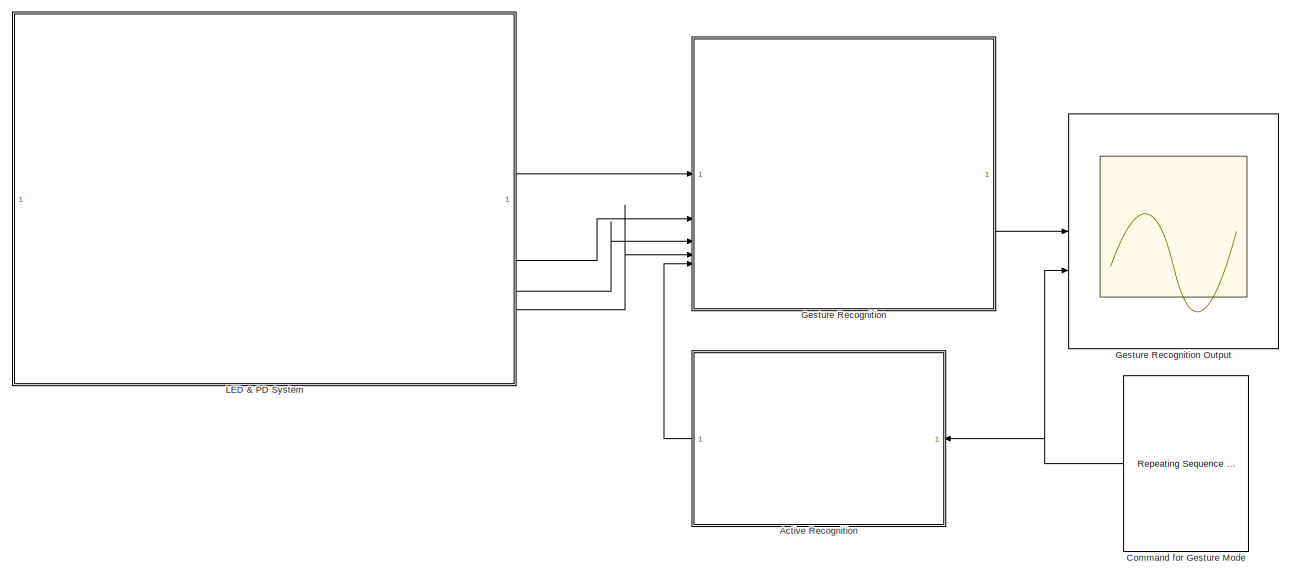
[diagram: root canvas - part 1/2, most of the canvas]
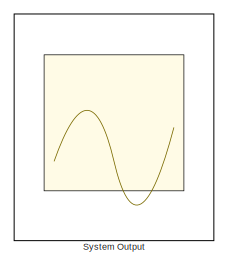
[diagram: root canvas - part 2/2, top left region]
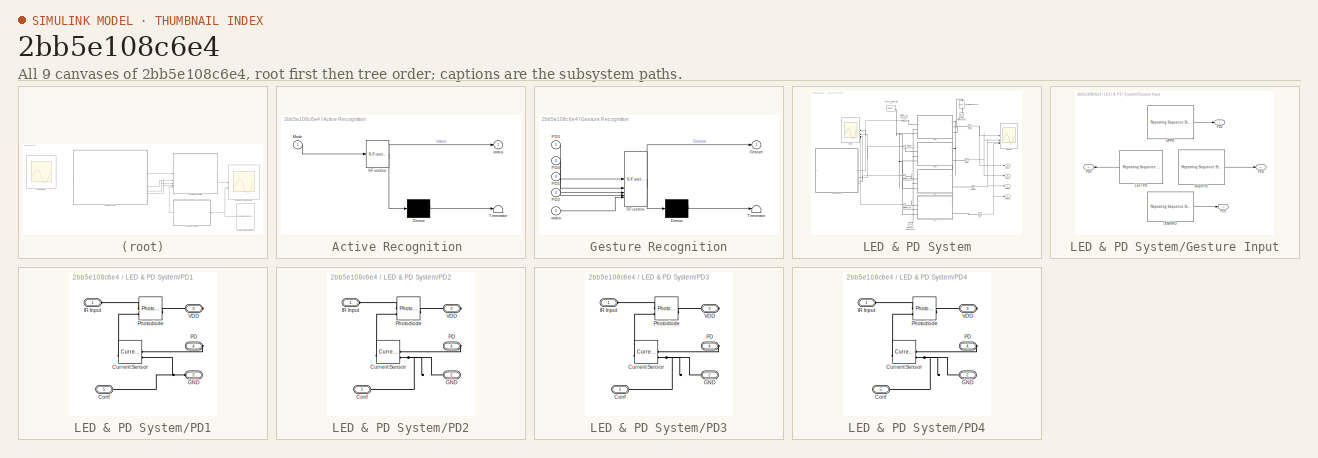
[diagram: thumbnail index - all 9 canvases of the model, root first then tree order]
MODEL slx_2bb5e108c6e4
KIND model
CONFIG AbsTol = auto
CONFIG EnableMultiTasking = off
CONFIG FixedStep = auto
CONFIG MaxStep = auto
CONFIG MinStep = auto
CONFIG RelTol = 1e-3
CONFIG SampleTimeConstraint = Unconstrained
CONFIG SolverName = VariableStepAuto
CONFIG StartTime = 0.0
CONFIG StopTime = 20
BLOCK [SubSystem] Active Recognition 
  ErrorFcn = Stateflow.Translate.translate
  PermitHierarchicalResolution = ExplicitOnly
  SFBlockType = Chart
  TreatAsAtomicUnit = on
BLOCK [Demux] Active Recognition / Demux 
  Outputs = 1
BLOCK [S-Function] Active Recognition / SFunction 
  EnableBusSupport = on
  FunctionName = sf_sfun
  PortCounts = [1 2]
  SFcnIsStateOwnerBlock = off
  SFunctionDeploymentMode = off
  Tag = Stateflow S-Function 1
BLOCK [Terminator] Active Recognition / Terminator 
BLOCK [Inport] Active Recognition /Mode
BLOCK [Outport] Active Recognition /status
BLOCK [Reference] Command for Gesture Mode  REF=simulink/Sources/Repeating
Sequence
Stair
  SourceBlock = simulink/Sources/Repeating\nSequence\nStair
  SourceType = Repeating Sequence Stair
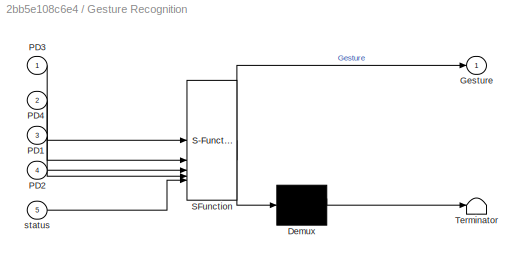
BLOCK [SubSystem] Gesture Recognition
  ErrorFcn = Stateflow.Translate.translate
  PermitHierarchicalResolution = ExplicitOnly
  SFBlockType = Chart
  TreatAsAtomicUnit = on
BLOCK [Scope] Gesture Recognition Output
  Floating = off
  NumInputPorts = 2
  ScopeSpecificationString = Simulink.scopes.TimeScopeBlockCfg('CurrentConfiguration', extmgr.ConfigurationSet(extmgr.Configuration('Core','General UI',true),extmgr.Configuration('Core','Source UI',true),extmgr.Configuration('Sources','WiredSimulink',true,'DataLoggingVariableName','ScopeData1'),extmgr.Configuration('Visuals','Time Domain',true,'SerializedDisplays',{struct('MinYLimReal','-0.125','MaxYLimReal','1.125','YLabelRe...<+1420ch>
BLOCK [Demux] Gesture Recognition/ Demux 
  Outputs = 1
BLOCK [S-Function] Gesture Recognition/ SFunction 
  EnableBusSupport = on
  FunctionName = sf_sfun
  PortCounts = [5 2]
  SFcnIsStateOwnerBlock = off
  SFunctionDeploymentMode = off
  Tag = Stateflow S-Function 3
BLOCK [Terminator] Gesture Recognition/ Terminator 
BLOCK [Outport] Gesture Recognition/Gesture
BLOCK [Inport] Gesture Recognition/PD1
  Port = 3
BLOCK [Inport] Gesture Recognition/PD2
  Port = 4
BLOCK [Inport] Gesture Recognition/PD3
BLOCK [Inport] Gesture Recognition/PD4
  Port = 2
BLOCK [Inport] Gesture Recognition/status
  Port = 5
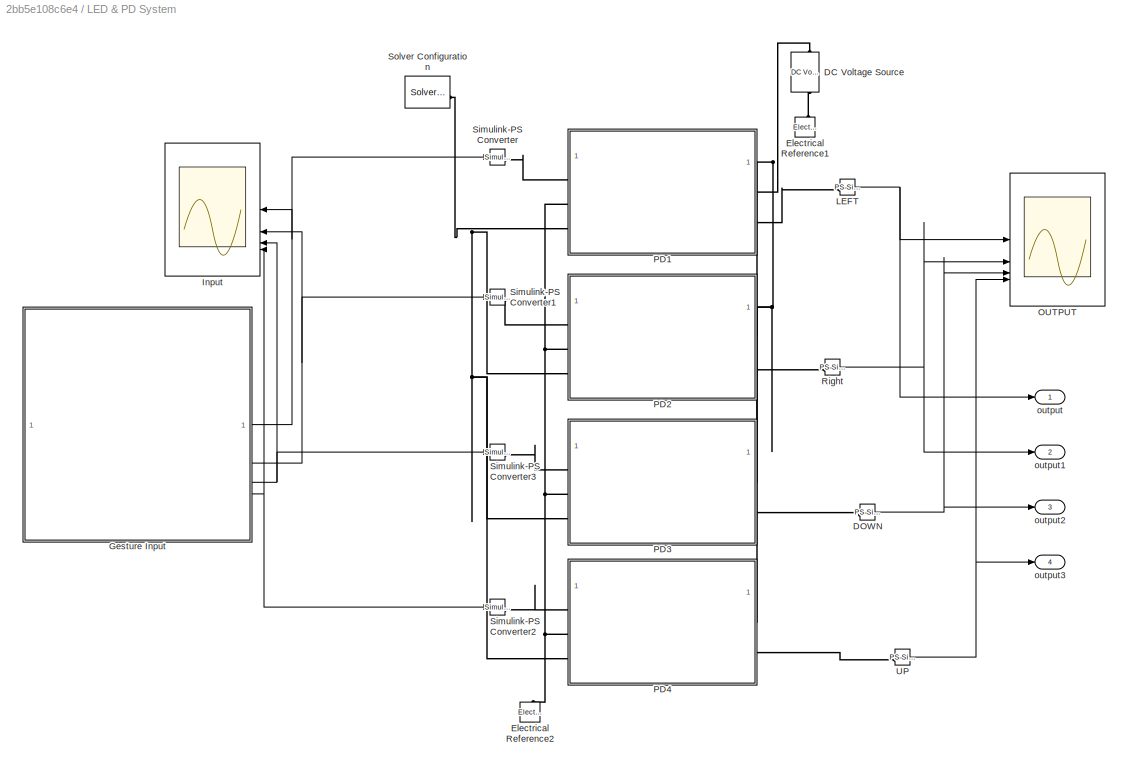
BLOCK [SubSystem] LED & PD System
BLOCK [Reference] LED & PD System/DC Voltage Source  REF=fl_lib/Electrical/Electrical Sources/DC Voltage Source
  NameLocation = right
  SourceBlock = fl_lib/Electrical/Electrical Sources/DC Voltage Source
  SourceType = DC Voltage Source
BLOCK [Reference] LED & PD System/DOWN  REF=nesl_utility/PS-Simulink
Converter
  SourceBlock = nesl_utility/PS-Simulink\nConverter
  SourceType = PS-Simulink\nConverter
BLOCK [Reference] LED & PD System/Electrical Reference1  REF=fl_lib/Electrical/Electrical Elements/Electrical Reference
  NameLocation = right
  SourceBlock = fl_lib/Electrical/Electrical Elements/Electrical Reference
  SourceType = Electrical Reference
BLOCK [Reference] LED & PD System/Electrical Reference2  REF=fl_lib/Electrical/Electrical Elements/Electrical Reference
  NameLocation = right
  SourceBlock = fl_lib/Electrical/Electrical Elements/Electrical Reference
  SourceType = Electrical Reference
BLOCK [SubSystem] LED & PD System/Gesture Input
BLOCK [Reference] LED & PD System/Gesture Input/DOWNPD  REF=simulink/Sources/Repeating
Sequence
Stair
  SourceBlock = simulink/Sources/Repeating\nSequence\nStair
  SourceType = Repeating Sequence Stair
BLOCK [Reference] LED & PD System/Gesture Input/LEFTPD  REF=simulink/Sources/Repeating
Sequence
Stair
  SourceBlock = simulink/Sources/Repeating\nSequence\nStair
  SourceType = Repeating Sequence Stair
BLOCK [Outport] LED & PD System/Gesture Input/PD1
  Port = 3
BLOCK [Outport] LED & PD System/Gesture Input/PD2
  Port = 4
BLOCK [Outport] LED & PD System/Gesture Input/PD3
BLOCK [Outport] LED & PD System/Gesture Input/PD4
  Port = 2
BLOCK [Reference] LED & PD System/Gesture Input/RIGHTPD  REF=simulink/Sources/Repeating
Sequence
Stair
  SourceBlock = simulink/Sources/Repeating\nSequence\nStair
  SourceType = Repeating Sequence Stair
BLOCK [Reference] LED & PD System/Gesture Input/UPPD  REF=simulink/Sources/Repeating
Sequence
Stair
  SourceBlock = simulink/Sources/Repeating\nSequence\nStair
  SourceType = Repeating Sequence Stair
BLOCK [Scope] LED & PD System/Input
  Floating = off
  NumInputPorts = 4
  ScopeSpecificationString = Simulink.scopes.TimeScopeBlockCfg('CurrentConfiguration', extmgr.ConfigurationSet(extmgr.Configuration('Core','General UI',true),extmgr.Configuration('Core','Source UI',true),extmgr.Configuration('Sources','WiredSimulink',true,'DataLoggingVariableName','ScopeData1'),extmgr.Configuration('Visuals','Time Domain',true,'SerializedDisplays',{struct('MinYLimReal','50000.00000','MaxYLimReal','550000.0000...<+1489ch>
BLOCK [Reference] LED & PD System/LEFT  REF=nesl_utility/PS-Simulink
Converter
  SourceBlock = nesl_utility/PS-Simulink\nConverter
  SourceType = PS-Simulink\nConverter
BLOCK [Scope] LED & PD System/OUTPUT
  Floating = off
  NumInputPorts = 4
  ScopeSpecificationString = Simulink.scopes.TimeScopeBlockCfg('CurrentConfiguration', extmgr.ConfigurationSet(extmgr.Configuration('Core','General UI',true),extmgr.Configuration('Core','Source UI',true),extmgr.Configuration('Sources','WiredSimulink',true),extmgr.Configuration('Visuals','Time Domain',true,'SerializedDisplays',{struct('MinYLimReal','-0.75002','MaxYLimReal','3','YLabelReal','','MinYLimMag','0.00000','MaxYLimMag...<+1404ch>
BLOCK [SubSystem] LED & PD System/PD1
BLOCK [PMIOPort] LED & PD System/PD1/Conf
  Port = 5
  Side = Left
BLOCK [Reference] LED & PD System/PD1/Current Sensor  REF=fl_lib/Electrical/Electrical Sensors/Current Sensor
  LibrarySourceBlock = ee_lib/Sensors &\nTransducers/Current Sensor
  SourceBlock = fl_lib/Electrical/Electrical Sensors/Current Sensor
  SourceType = Current Sensor
BLOCK [PMIOPort] LED & PD System/PD1/GND
  Port = 2
  Side = Left
BLOCK [PMIOPort] LED & PD System/PD1/IR Input
  Side = Left
BLOCK [PMIOPort] LED & PD System/PD1/PD
  Port = 4
  Side = Right
BLOCK [Reference] LED & PD System/PD1/Photodiode  REF=ee_lib/Sensors &
Transducers/Photodiode
  SourceBlock = ee_lib/Sensors &\nTransducers/Photodiode
  SourceType = Photodiode
BLOCK [PMIOPort] LED & PD System/PD1/VDD
  Port = 3
  Side = Right
BLOCK [SubSystem] LED & PD System/PD2
BLOCK [PMIOPort] LED & PD System/PD2/Conf
  Port = 5
  Side = Left
BLOCK [Reference] LED & PD System/PD2/Current Sensor  REF=fl_lib/Electrical/Electrical Sensors/Current Sensor
  LibrarySourceBlock = ee_lib/Sensors &\nTransducers/Current Sensor
  SourceBlock = fl_lib/Electrical/Electrical Sensors/Current Sensor
  SourceType = Current Sensor
BLOCK [PMIOPort] LED & PD System/PD2/GND
  Port = 2
  Side = Left
BLOCK [PMIOPort] LED & PD System/PD2/IR Input
  Side = Left
BLOCK [PMIOPort] LED & PD System/PD2/PD
  Port = 4
  Side = Right
BLOCK [Reference] LED & PD System/PD2/Photodiode  REF=ee_lib/Sensors &
Transducers/Photodiode
  SourceBlock = ee_lib/Sensors &\nTransducers/Photodiode
  SourceType = Photodiode
BLOCK [PMIOPort] LED & PD System/PD2/VDD
  Port = 3
  Side = Right
BLOCK [SubSystem] LED & PD System/PD3
BLOCK [PMIOPort] LED & PD System/PD3/Conf
  Port = 5
  Side = Left
BLOCK [Reference] LED & PD System/PD3/Current Sensor  REF=fl_lib/Electrical/Electrical Sensors/Current Sensor
  LibrarySourceBlock = ee_lib/Sensors &\nTransducers/Current Sensor
  SourceBlock = fl_lib/Electrical/Electrical Sensors/Current Sensor
  SourceType = Current Sensor
BLOCK [PMIOPort] LED & PD System/PD3/GND
  Port = 2
  Side = Left
BLOCK [PMIOPort] LED & PD System/PD3/IR Input
  Side = Left
BLOCK [PMIOPort] LED & PD System/PD3/PD
  Port = 4
  Side = Right
BLOCK [Reference] LED & PD System/PD3/Photodiode  REF=ee_lib/Sensors &
Transducers/Photodiode
  SourceBlock = ee_lib/Sensors &\nTransducers/Photodiode
  SourceType = Photodiode
BLOCK [PMIOPort] LED & PD System/PD3/VDD
  Port = 3
  Side = Right
BLOCK [SubSystem] LED & PD System/PD4
BLOCK [PMIOPort] LED & PD System/PD4/Conf
  Port = 5
  Side = Left
BLOCK [Reference] LED & PD System/PD4/Current Sensor  REF=fl_lib/Electrical/Electrical Sensors/Current Sensor
  LibrarySourceBlock = ee_lib/Sensors &\nTransducers/Current Sensor
  SourceBlock = fl_lib/Electrical/Electrical Sensors/Current Sensor
  SourceType = Current Sensor
BLOCK [PMIOPort] LED & PD System/PD4/GND
  Port = 2
  Side = Left
BLOCK [PMIOPort] LED & PD System/PD4/IR Input
  Side = Left
BLOCK [PMIOPort] LED & PD System/PD4/PD
  Port = 4
  Side = Right
BLOCK [Reference] LED & PD System/PD4/Photodiode  REF=ee_lib/Sensors &
Transducers/Photodiode
  SourceBlock = ee_lib/Sensors &\nTransducers/Photodiode
  SourceType = Photodiode
BLOCK [PMIOPort] LED & PD System/PD4/VDD
  Port = 3
  Side = Right
BLOCK [Reference] LED & PD System/Right  REF=nesl_utility/PS-Simulink
Converter
  SourceBlock = nesl_utility/PS-Simulink\nConverter
  SourceType = PS-Simulink\nConverter
BLOCK [Reference] LED & PD System/Simulink-PS Converter  REF=nesl_utility/Simulink-PS
Converter
  SourceBlock = nesl_utility/Simulink-PS\nConverter
  SourceType = Simulink-PS\nConverter
BLOCK [Reference] LED & PD System/Simulink-PS Converter1  REF=nesl_utility/Simulink-PS
Converter
  SourceBlock = nesl_utility/Simulink-PS\nConverter
  SourceType = Simulink-PS\nConverter
BLOCK [Reference] LED & PD System/Simulink-PS Converter2  REF=nesl_utility/Simulink-PS
Converter
  SourceBlock = nesl_utility/Simulink-PS\nConverter
  SourceType = Simulink-PS\nConverter
BLOCK [Reference] LED & PD System/Simulink-PS Converter3  REF=nesl_utility/Simulink-PS
Converter
  SourceBlock = nesl_utility/Simulink-PS\nConverter
  SourceType = Simulink-PS\nConverter
BLOCK [Reference] LED & PD System/Solver Configuration  REF=nesl_utility/Solver
Configuration
  SourceBlock = nesl_utility/Solver\nConfiguration
  SourceType = Solver\nConfiguration
BLOCK [Reference] LED & PD System/UP  REF=nesl_utility/PS-Simulink
Converter
  SourceBlock = nesl_utility/PS-Simulink\nConverter
  SourceType = PS-Simulink\nConverter
BLOCK [Outport] LED & PD System/output
BLOCK [Outport] LED & PD System/output1
  Port = 2
BLOCK [Outport] LED & PD System/output2
  Port = 3
BLOCK [Outport] LED & PD System/output3
  Port = 4
BLOCK [Scope] System Output
  Floating = on
  NumInputPorts = 1
  ScopeSpecificationString = Simulink.scopes.TimeScopeBlockCfg('CurrentConfiguration', extmgr.ConfigurationSet(extmgr.Configuration('Core','General UI',true),extmgr.Configuration('Core','Source UI',true),extmgr.Configuration('Sources','WiredSimulink',true,'DataLoggingVariableName','ScopeData1'),extmgr.Configuration('Visuals','Time Domain',true,'SerializedDisplays',{struct('MinYLimReal','-0.125','MaxYLimReal','1.125','YLabelRe...<+3006ch>
LINE Active Recognition :1 -> Gesture Recognition:5
NET Command for Gesture Mode:1 -> Active Recognition :1, Gesture Recognition Output:2
LINE Gesture Recognition:1 -> Gesture Recognition Output:1
NET LED & PD System/DOWN:1 -> LED & PD System/OUTPUT:3, LED & PD System/output2:1
LINE LED & PD System/Gesture Input/DOWNPD:1 -> LED & PD System/Gesture Input/PD1:1
LINE LED & PD System/Gesture Input/LEFTPD:1 -> LED & PD System/Gesture Input/PD3:1
LINE LED & PD System/Gesture Input/RIGHTPD:1 -> LED & PD System/Gesture Input/PD4:1
LINE LED & PD System/Gesture Input/UPPD:1 -> LED & PD System/Gesture Input/PD2:1
NET LED & PD System/Gesture Input:1 -> LED & PD System/Input:1, LED & PD System/Simulink-PS Converter:1
NET LED & PD System/Gesture Input:2 -> LED & PD System/Input:2, LED & PD System/Simulink-PS Converter1:1
NET LED & PD System/Gesture Input:3 -> LED & PD System/Input:3, LED & PD System/Simulink-PS Converter3:1
NET LED & PD System/Gesture Input:4 -> LED & PD System/Input:4, LED & PD System/Simulink-PS Converter2:1
NET LED & PD System/LEFT:1 -> LED & PD System/OUTPUT:1, LED & PD System/output:1
NET LED & PD System/Right:1 -> LED & PD System/OUTPUT:2, LED & PD System/output1:1
NET LED & PD System/UP:1 -> LED & PD System/OUTPUT:4, LED & PD System/output3:1
LINE LED & PD System:1 -> Gesture Recognition:1
LINE LED & PD System:2 -> Gesture Recognition:2
LINE LED & PD System:3 -> Gesture Recognition:3
LINE LED & PD System:4 -> Gesture Recognition:4
PNET net1: LED & PD System/DC Voltage Source:LConn1 -- LED & PD System/PD1:RConn1 -- LED & PD System/PD2:RConn1 -- LED & PD System/PD3:RConn1 -- LED & PD System/PD4:RConn1
PLINE LED & PD System/DC Voltage Source:RConn1 -- LED & PD System/Electrical Reference1:LConn1
PLINE LED & PD System/DOWN:LConn1 -- LED & PD System/PD3:RConn2
PNET net2: LED & PD System/Electrical Reference2:LConn1 -- LED & PD System/PD1:LConn2 -- LED & PD System/PD2:LConn2 -- LED & PD System/PD3:LConn2 -- LED & PD System/PD4:LConn2
PLINE LED & PD System/LEFT:LConn1 -- LED & PD System/PD1:RConn2
PNET net3: LED & PD System/PD1/Conf:RConn1 -- LED & PD System/PD1/Current Sensor:RConn2 -- LED & PD System/PD1/GND:RConn1
PLINE LED & PD System/PD1/Current Sensor:LConn1 -- LED & PD System/PD1/Photodiode:LConn2
PLINE LED & PD System/PD1/Current Sensor:RConn1 -- LED & PD System/PD1/PD:RConn1
PLINE LED & PD System/PD1/IR Input:RConn1 -- LED & PD System/PD1/Photodiode:LConn1
PLINE LED & PD System/PD1/Photodiode:RConn1 -- LED & PD System/PD1/VDD:RConn1
PLINE LED & PD System/PD1:LConn1 -- LED & PD System/Simulink-PS Converter:RConn1
PNET net4: LED & PD System/PD1:LConn3 -- LED & PD System/PD2:LConn3 -- LED & PD System/PD3:LConn3 -- LED & PD System/PD4:LConn3 -- LED & PD System/Solver Configuration:RConn1
PNET net5: LED & PD System/PD2/Conf:RConn1 -- LED & PD System/PD2/Current Sensor:RConn2 -- LED & PD System/PD2/GND:RConn1
PLINE LED & PD System/PD2/Current Sensor:LConn1 -- LED & PD System/PD2/Photodiode:LConn2
PLINE LED & PD System/PD2/Current Sensor:RConn1 -- LED & PD System/PD2/PD:RConn1
PLINE LED & PD System/PD2/IR Input:RConn1 -- LED & PD System/PD2/Photodiode:LConn1
PLINE LED & PD System/PD2/Photodiode:RConn1 -- LED & PD System/PD2/VDD:RConn1
PLINE LED & PD System/PD2:LConn1 -- LED & PD System/Simulink-PS Converter1:RConn1
PLINE LED & PD System/PD2:RConn2 -- LED & PD System/Right:LConn1
PNET net6: LED & PD System/PD3/Conf:RConn1 -- LED & PD System/PD3/Current Sensor:RConn2 -- LED & PD System/PD3/GND:RConn1
PLINE LED & PD System/PD3/Current Sensor:LConn1 -- LED & PD System/PD3/Photodiode:LConn2
PLINE LED & PD System/PD3/Current Sensor:RConn1 -- LED & PD System/PD3/PD:RConn1
PLINE LED & PD System/PD3/IR Input:RConn1 -- LED & PD System/PD3/Photodiode:LConn1
PLINE LED & PD System/PD3/Photodiode:RConn1 -- LED & PD System/PD3/VDD:RConn1
PLINE LED & PD System/PD3:LConn1 -- LED & PD System/Simulink-PS Converter3:RConn1
PNET net7: LED & PD System/PD4/Conf:RConn1 -- LED & PD System/PD4/Current Sensor:RConn2 -- LED & PD System/PD4/GND:RConn1
PLINE LED & PD System/PD4/Current Sensor:LConn1 -- LED & PD System/PD4/Photodiode:LConn2
PLINE LED & PD System/PD4/Current Sensor:RConn1 -- LED & PD System/PD4/PD:RConn1
PLINE LED & PD System/PD4/IR Input:RConn1 -- LED & PD System/PD4/Photodiode:LConn1
PLINE LED & PD System/PD4/Photodiode:RConn1 -- LED & PD System/PD4/VDD:RConn1
PLINE LED & PD System/PD4:LConn1 -- LED & PD System/Simulink-PS Converter2:RConn1
PLINE LED & PD System/PD4:RConn2 -- LED & PD System/UP:LConn1
note: NET lines group one-source signal fan-out (src -> all destinations, sorted); 1:1 wires keep LINE; PNET lines group multi-terminal physical nets as a canonical sorted terminal list (undirected conserving connections); 2-terminal nets keep the pairwise PLINE form
CHART Active Recognition  states=2 transitions=3
  STATE_LABEL 'Idle\n'
  STATE_LABEL 'Start'
CHART Gesture Recognition states=7 transitions=13
  STATE_LABEL 'Up'
  STATE_LABEL 'Down'
  STATE_LABEL 'Sleep'
  STATE_LABEL 'Awake\n'
  STATE_LABEL 'Return\n'
  STATE_LABEL 'Right'
  STATE_LABEL 'Left'
CHART  states=0 transitions=0
CHART  states=0 transitions=0
